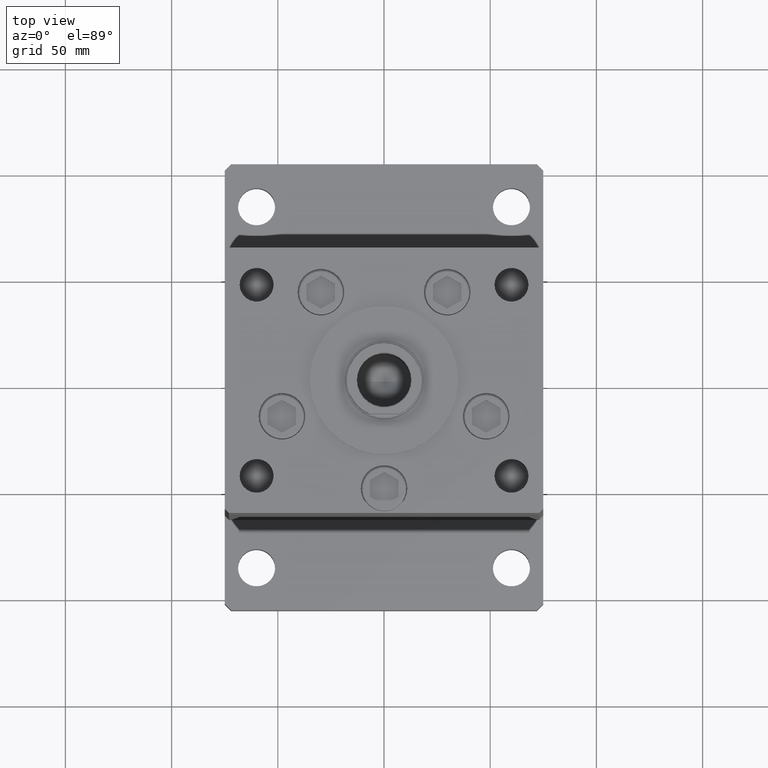
[diagram: clean part render]
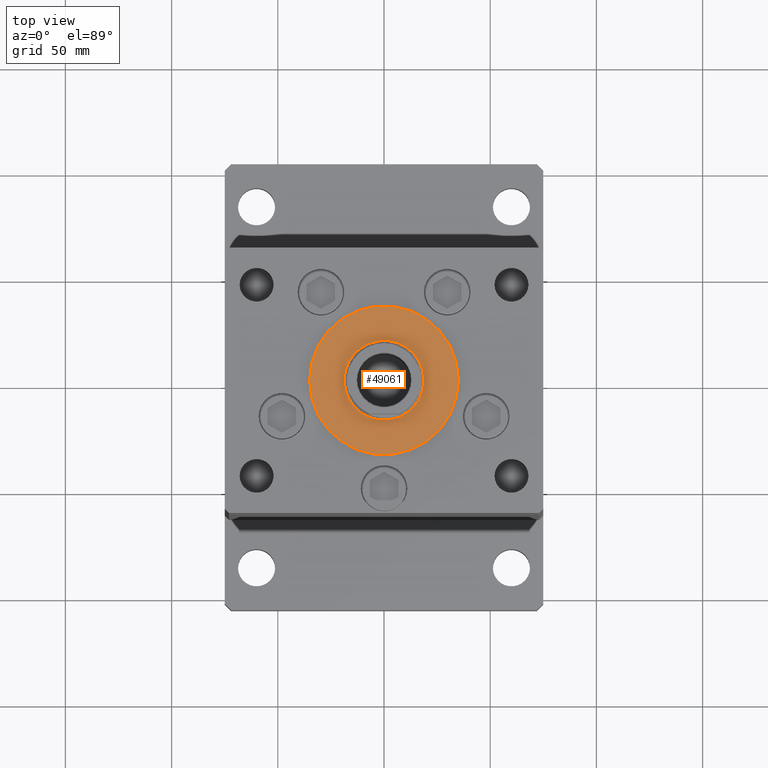
[diagram: same view with one face highlighted and labeled with its STEP entity id]
A machine part, top view. The second image highlights one B-rep face of the part: STEP entity #49061.
In plain terms, the highlighted planar face has unit normal (0, 0, 1).
Its self-contained STEP definition (entity closure, byte-faithful):
#312 = CIRCLE ( 'NONE', #30663, 18.75000000000000355 ) ;
#1848 = ORIENTED_EDGE ( 'NONE', *, *, #9282, .T. ) ;
#2627 = ORIENTED_EDGE ( 'NONE', *, *, #46860, .F. ) ;
#2900 = DIRECTION ( 'NONE',  ( 1.000000000000000000, 0.000000000000000000, 0.000000000000000000 ) ) ;
#3005 = CARTESIAN_POINT ( 'NONE',  ( 0.000000000000000000, -6.938893903907228378E-15, 2.000000000000000000 ) ) ;
#5851 = VERTEX_POINT ( 'NONE', #15684 ) ;
#9020 = DIRECTION ( 'NONE',  ( 1.000000000000000000, 0.000000000000000000, -0.000000000000000000 ) ) ;
#9282 = EDGE_CURVE ( 'NONE', #36899, #25813, #53231, .T. ) ;
#9456 = EDGE_LOOP ( 'NONE', ( #2627, #48417 ) ) ;
#11251 = CARTESIAN_POINT ( 'NONE',  ( 0.000000000000000000, -6.938893903907228378E-15, 2.000000000000000000 ) ) ;
#13088 = FACE_BOUND ( 'NONE', #9456, .T. ) ;
#13753 = EDGE_CURVE ( 'NONE', #24117, #5851, #38985, .T. ) ;
#14631 = ORIENTED_EDGE ( 'NONE', *, *, #23026, .T. ) ;
#14709 = AXIS2_PLACEMENT_3D ( 'NONE', #3005, #26636, #47535 ) ;
#15684 = CARTESIAN_POINT ( 'NONE',  ( 18.75000000000000355, -6.938893903907228378E-15, 2.000000000000000000 ) ) ;
#15974 = AXIS2_PLACEMENT_3D ( 'NONE', #11251, #49224, #19663 ) ;
#17727 = AXIS2_PLACEMENT_3D ( 'NONE', #29377, #49466, #9020 ) ;
#17877 = CARTESIAN_POINT ( 'NONE',  ( 35.00000000000000711, -2.652630106891490698E-15, 2.000000000000000000 ) ) ;
#17939 = CARTESIAN_POINT ( 'NONE',  ( -18.75000000000000355, -4.642681155505941194E-15, 2.000000000000000000 ) ) ;
#19663 = DIRECTION ( 'NONE',  ( 1.000000000000000000, 0.000000000000000000, 0.000000000000000000 ) ) ;
#20489 = EDGE_LOOP ( 'NONE', ( #14631, #1848 ) ) ;
#20500 = DIRECTION ( 'NONE',  ( 0.000000000000000000, 0.000000000000000000, 1.000000000000000000 ) ) ;
#23026 = EDGE_CURVE ( 'NONE', #25813, #36899, #25280, .T. ) ;
#24117 = VERTEX_POINT ( 'NONE', #17939 ) ;
#25083 = CARTESIAN_POINT ( 'NONE',  ( 0.000000000000000000, -6.938893903907228378E-15, 2.000000000000000000 ) ) ;
#25280 = CIRCLE ( 'NONE', #49546, 35.00000000000000711 ) ;
#25813 = VERTEX_POINT ( 'NONE', #42923 ) ;
#26636 = DIRECTION ( 'NONE',  ( 0.000000000000000000, 0.000000000000000000, 1.000000000000000000 ) ) ;
#29377 = CARTESIAN_POINT ( 'NONE',  ( 0.000000000000000000, -6.938893903907228378E-15, 2.000000000000000000 ) ) ;
#30663 = AXIS2_PLACEMENT_3D ( 'NONE', #25083, #20500, #41655 ) ;
#36899 = VERTEX_POINT ( 'NONE', #17877 ) ;
#38985 = CIRCLE ( 'NONE', #14709, 18.75000000000000355 ) ;
#41655 = DIRECTION ( 'NONE',  ( 1.000000000000000000, 0.000000000000000000, 0.000000000000000000 ) ) ;
#42923 = CARTESIAN_POINT ( 'NONE',  ( -35.00000000000000711, -6.938893903907228378E-15, 2.000000000000000000 ) ) ;
#45134 = FACE_OUTER_BOUND ( 'NONE', #20489, .T. ) ;
#45675 = PLANE ( 'NONE',  #17727 ) ;
#46860 = EDGE_CURVE ( 'NONE', #5851, #24117, #312, .T. ) ;
#47535 = DIRECTION ( 'NONE',  ( 1.000000000000000000, 0.000000000000000000, 0.000000000000000000 ) ) ;
#47968 = CARTESIAN_POINT ( 'NONE',  ( 0.000000000000000000, -6.938893903907228378E-15, 2.000000000000000000 ) ) ;
#48417 = ORIENTED_EDGE ( 'NONE', *, *, #13753, .F. ) ;
#48504 = DIRECTION ( 'NONE',  ( 0.000000000000000000, 0.000000000000000000, 1.000000000000000000 ) ) ;
#49061 = ADVANCED_FACE ( 'NONE', ( #13088, #45134 ), #45675, .T. ) ;
#49224 = DIRECTION ( 'NONE',  ( 0.000000000000000000, 0.000000000000000000, 1.000000000000000000 ) ) ;
#49466 = DIRECTION ( 'NONE',  ( 0.000000000000000000, 0.000000000000000000, 1.000000000000000000 ) ) ;
#49546 = AXIS2_PLACEMENT_3D ( 'NONE', #47968, #48504, #2900 ) ;
#53231 = CIRCLE ( 'NONE', #15974, 35.00000000000000711 ) ;